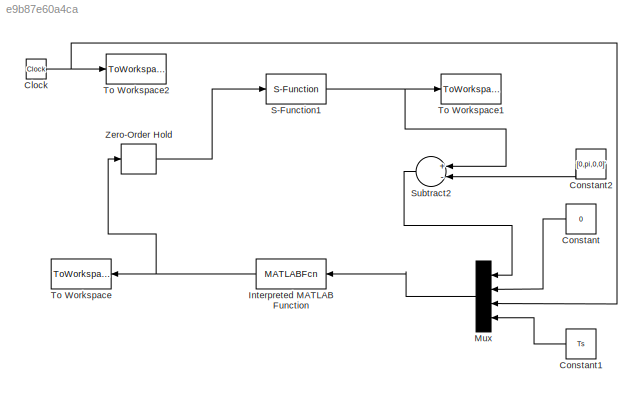
MODEL slx_e9b87e60a4ca
KIND model
CONFIG AbsTol = auto
CONFIG FixedStep = auto
CONFIG MaxStep = auto
CONFIG MinStep = auto
CONFIG RelTol = 1e-3
CONFIG SampleTimeConstraint = Unconstrained
CONFIG Solver = ode45
CONFIG SolverMode = Auto
CONFIG SolverName = ode45
CONFIG StartTime = 0.0
CONFIG StopTime = tf
BLOCK [Clock] Clock
BLOCK [Constant] Constant
  SampleTime = T
  Value = 0
BLOCK [Constant] Constant1
  SampleTime = T
  Value = Ts
BLOCK [Constant] Constant2
  SampleTime = T
  Value = [0,pi,0,0]'
BLOCK [MATLABFcn] Interpreted MATLAB Function
  MATLABFcn = finaltry(u(1:4),u(5),u(6),u(7))
  Ports = [1, 1]
BLOCK [Mux] Mux
  DisplayOption = bar
  Ports = [4, 1]
BLOCK [S-Function] S-Function1
  EnableBusSupport = off
  FunctionName = sfunc_disc
  Parameters = x0,P,K
  Ports = [1, 1]
  SFunctionDeploymentMode = off
BLOCK [Sum] Subtract2
  InputSameDT = off
  Inputs = +-
  OutDataTypeStr = Inherit: Inherit via internal rule
  Ports = [2, 1]
  SaturateOnIntegerOverflow = off
BLOCK [ToWorkspace] To Workspace
  FixptAsFi = on
  MaxDataPoints = inf
  Ports = [1]
  SampleTime = T
  Save2DSignal = 3-D array (concatenate along third dimension)
  VariableName = u
BLOCK [ToWorkspace] To Workspace1
  FixptAsFi = on
  MaxDataPoints = inf
  Ports = [1]
  SampleTime = T
  Save2DSignal = 3-D array (concatenate along third dimension)
  VariableName = x
BLOCK [ToWorkspace] To Workspace2
  FixptAsFi = on
  MaxDataPoints = inf
  Ports = [1]
  SampleTime = T
  Save2DSignal = 3-D array (concatenate along third dimension)
  VariableName = time
BLOCK [ZeroOrderHold] Zero-Order Hold
  SampleTime = T
NET Clock:1 -> Mux:3, To Workspace2:1
LINE Constant1:1 -> Mux:4
LINE Constant2:1 -> Subtract2:2
LINE Constant:1 -> Mux:2
NET Interpreted MATLAB Function:1 -> To Workspace:1, Zero-Order Hold:1
LINE Mux:1 -> Interpreted MATLAB Function:1
NET S-Function1:1 -> Subtract2:1, To Workspace1:1
LINE Subtract2:1 -> Mux:1
LINE Zero-Order Hold:1 -> S-Function1:1
note: NET lines group one-source signal fan-out (src -> all destinations, sorted); 1:1 wires keep LINE
